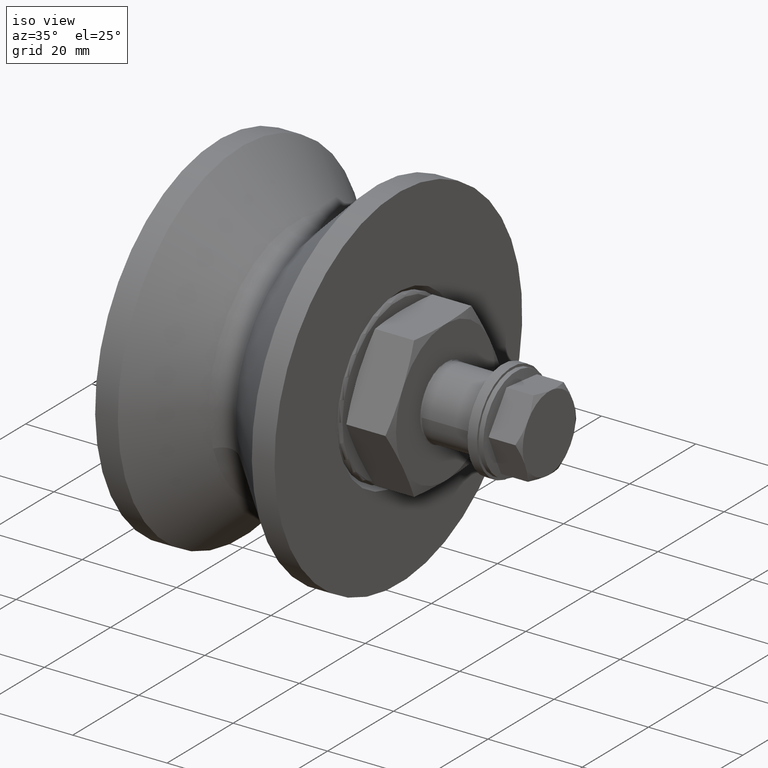
[diagram: clean part render]
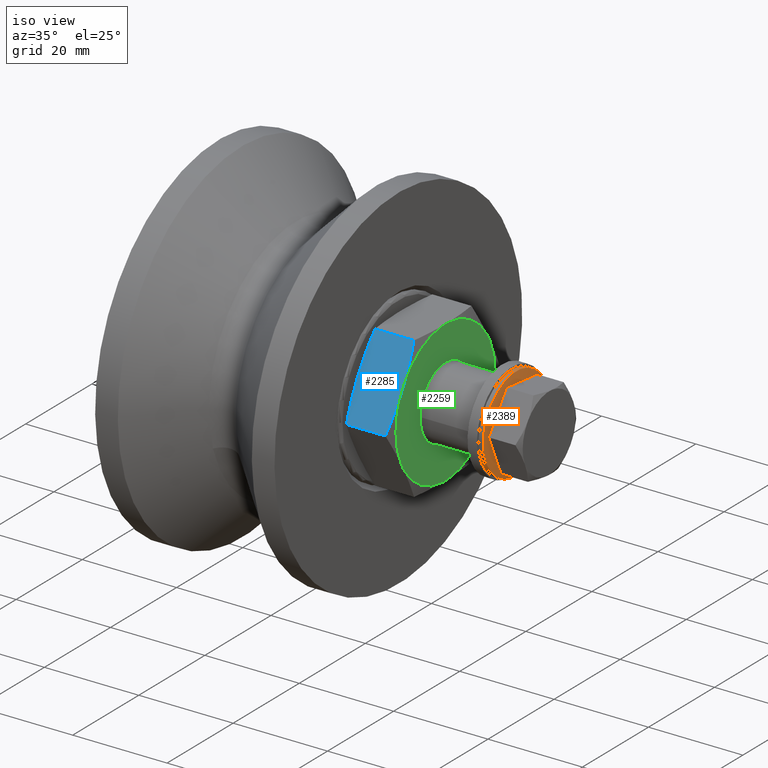
[diagram: same view with three faces highlighted in distinct colors, each labeled with its STEP entity id]
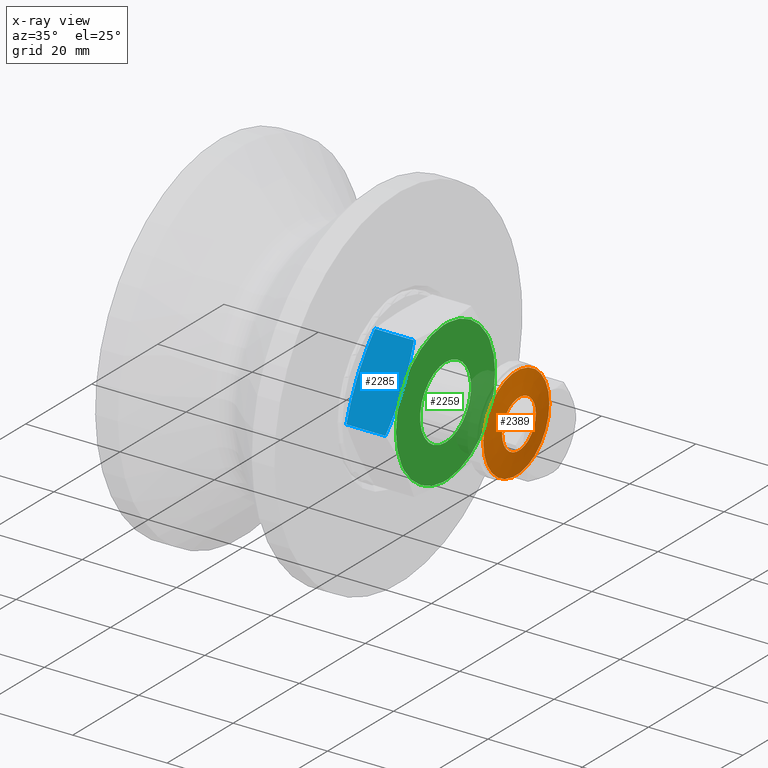
[diagram: x-ray of the same camera — body ghosted, the three highlighted faces saturated]
A machine part, iso view with three faces highlighted in distinct colors.
The next image is the same camera in x-ray (body ghosted, the three faces saturated) — at least one of them is partly hidden behind the body in this view.
Their STEP definitions:

[orange] entity #2389 — the highlighted conical surface has half-angle 83.596 deg.
#230=CONICAL_SURFACE('',#2912,7.55,1.45901928526042);
#395=LINE('',#5178,#483);
#483=VECTOR('',#3604,7.55);
#644=FACE_OUTER_BOUND('',#816,.T.);
#816=EDGE_LOOP('',(#2219,#2220,#2221,#2222));
#971=CIRCLE('',#2913,10.);
#972=CIRCLE('',#2914,5.1);
#1205=VERTEX_POINT('',#5175);
#1206=VERTEX_POINT('',#5177);
#1543=EDGE_CURVE('',#1205,#1205,#971,.T.);
#1544=EDGE_CURVE('',#1205,#1206,#395,.T.);
#1545=EDGE_CURVE('',#1206,#1206,#972,.T.);
#2219=ORIENTED_EDGE('',*,*,#1543,.F.);
#2220=ORIENTED_EDGE('',*,*,#1544,.T.);
#2221=ORIENTED_EDGE('',*,*,#1545,.T.);
#2222=ORIENTED_EDGE('',*,*,#1544,.F.);
#2389=ADVANCED_FACE('',(#644),#230,.T.);
#2912=AXIS2_PLACEMENT_3D('',#5174,#3600,#3601);
#2913=AXIS2_PLACEMENT_3D('',#5176,#3602,#3603);
#2914=AXIS2_PLACEMENT_3D('',#5179,#3605,#3606);
#3600=DIRECTION('center_axis',(0.,-1.,0.));
#3601=DIRECTION('ref_axis',(1.,0.,0.));
#3602=DIRECTION('center_axis',(0.,-1.,0.));
#3603=DIRECTION('ref_axis',(1.,0.,0.));
#3604=DIRECTION('',(0.993759448064252,0.111544427843947,1.21700432719433E-16));
#3605=DIRECTION('center_axis',(0.,-1.,0.));
#3606=DIRECTION('ref_axis',(1.,0.,0.));
#5174=CARTESIAN_POINT('Origin',(0.,1.275,0.));
#5175=CARTESIAN_POINT('',(-10.,1.,-1.22464679914735E-15));
#5176=CARTESIAN_POINT('Origin',(0.,1.,0.));
#5177=CARTESIAN_POINT('',(-5.1,1.55,-6.2456986756515E-16));
#5178=CARTESIAN_POINT('',(-7.55,1.275,-9.24608333356252E-16));
#5179=CARTESIAN_POINT('Origin',(0.,1.55,0.));

[blue] entity #2285 — the highlighted planar face has unit normal (0, -0.866, 0.5).
#151=(
BOUNDED_CURVE()
B_SPLINE_CURVE(2,(#3734,#3735,#3736),.UNSPECIFIED.,.F.,.F.)
B_SPLINE_CURVE_WITH_KNOTS((3,3),(0.477239833382627,1.32556304778078),
 .UNSPECIFIED.)
CURVE()
GEOMETRIC_REPRESENTATION_ITEM()
RATIONAL_B_SPLINE_CURVE((1.03536115959658,1.04910889997977,1.))
REPRESENTATION_ITEM('')
);
#152=(
BOUNDED_CURVE()
B_SPLINE_CURVE(2,(#3740,#3741,#3742),.UNSPECIFIED.,.F.,.F.)
B_SPLINE_CURVE_WITH_KNOTS((3,3),(0.,0.848323214398149),.UNSPECIFIED.)
CURVE()
GEOMETRIC_REPRESENTATION_ITEM()
RATIONAL_B_SPLINE_CURVE((1.,1.04910889997977,1.03536115959658))
REPRESENTATION_ITEM('')
);
#163=(
BOUNDED_CURVE()
B_SPLINE_CURVE(2,(#3794,#3795,#3796),.UNSPECIFIED.,.F.,.F.)
B_SPLINE_CURVE_WITH_KNOTS((3,3),(0.477239833382626,1.32556304778078),
 .UNSPECIFIED.)
CURVE()
GEOMETRIC_REPRESENTATION_ITEM()
RATIONAL_B_SPLINE_CURVE((1.03536115959657,1.04910889997977,1.))
REPRESENTATION_ITEM('')
);
#164=(
BOUNDED_CURVE()
B_SPLINE_CURVE(2,(#3799,#3800,#3801),.UNSPECIFIED.,.F.,.F.)
B_SPLINE_CURVE_WITH_KNOTS((3,3),(0.,0.848323214398158),.UNSPECIFIED.)
CURVE()
GEOMETRIC_REPRESENTATION_ITEM()
RATIONAL_B_SPLINE_CURVE((1.,1.04910889997977,1.03536115959657))
REPRESENTATION_ITEM('')
);
#274=PLANE('',#2681);
#315=LINE('',#3673,#403);
#329=LINE('',#3845,#417);
#333=LINE('',#3853,#421);
#334=LINE('',#3854,#422);
#403=VECTOR('',#2964,10.);
#417=VECTOR('',#3068,10.);
#421=VECTOR('',#3078,10.);
#422=VECTOR('',#3079,10.);
#540=FACE_OUTER_BOUND('',#681,.T.);
#681=EDGE_LOOP('',(#1673,#1674,#1675,#1676,#1677,#1678,#1679,#1680));
#987=VERTEX_POINT('',#3670);
#988=VERTEX_POINT('',#3672);
#1007=VERTEX_POINT('',#3728);
#1008=VERTEX_POINT('',#3732);
#1009=VERTEX_POINT('',#3738);
#1010=VERTEX_POINT('',#3739);
#1022=VERTEX_POINT('',#3790);
#1023=VERTEX_POINT('',#3798);
#1223=EDGE_CURVE('',#987,#988,#315,.T.);
#1250=EDGE_CURVE('',#1007,#1008,#151,.T.);
#1251=EDGE_CURVE('',#1009,#1010,#152,.T.);
#1266=EDGE_CURVE('',#1022,#988,#163,.T.);
#1267=EDGE_CURVE('',#987,#1023,#164,.T.);
#1282=EDGE_CURVE('',#1009,#1008,#329,.T.);
#1287=EDGE_CURVE('',#1010,#1022,#333,.T.);
#1288=EDGE_CURVE('',#1007,#1023,#334,.T.);
#1673=ORIENTED_EDGE('',*,*,#1251,.T.);
#1674=ORIENTED_EDGE('',*,*,#1287,.T.);
#1675=ORIENTED_EDGE('',*,*,#1266,.T.);
#1676=ORIENTED_EDGE('',*,*,#1223,.F.);
#1677=ORIENTED_EDGE('',*,*,#1267,.T.);
#1678=ORIENTED_EDGE('',*,*,#1288,.F.);
#1679=ORIENTED_EDGE('',*,*,#1250,.T.);
#1680=ORIENTED_EDGE('',*,*,#1282,.F.);
#2285=ADVANCED_FACE('',(#540),#274,.T.);
#2681=AXIS2_PLACEMENT_3D('',#3852,#3076,#3077);
#2964=DIRECTION('',(0.,-0.5,-0.866025403784439));
#3068=DIRECTION('',(0.,0.5,0.866025403784439));
#3076=DIRECTION('center_axis',(0.,-0.866025403784439,0.5));
#3077=DIRECTION('ref_axis',(0.,-0.5,-0.866025403784439));
#3078=DIRECTION('',(1.,0.,0.));
#3079=DIRECTION('',(1.,0.,0.));
#3670=CARTESIAN_POINT('',(43.,-12.5980601256936,8.1795197854911));
#3672=CARTESIAN_POINT('',(43.,-13.3827019878395,6.82048021450891));
#3673=CARTESIAN_POINT('',(43.,-9.10656754730549,14.226962325509));
#3728=CARTESIAN_POINT('',(34.1162831425916,-8.66025403784439,15.));
#3732=CARTESIAN_POINT('',(33.5,-12.5980601256936,8.1795197854911));
#3734=CARTESIAN_POINT('Ctrl Pts',(34.1162831425916,-8.66025403784439,15.));
#3735=CARTESIAN_POINT('Ctrl Pts',(33.5511981876489,-10.7691798002832,11.3472334300651));
#3736=CARTESIAN_POINT('Ctrl Pts',(33.5,-12.5980601256936,8.17951978549113));
#3738=CARTESIAN_POINT('',(33.5,-13.3827019878395,6.82048021450891));
#3739=CARTESIAN_POINT('',(34.1162831425916,-17.3205080756888,-1.11022302462516E-15));
#3740=CARTESIAN_POINT('Ctrl Pts',(33.5,-13.3827019878396,6.82048021450889));
#3741=CARTESIAN_POINT('Ctrl Pts',(33.5511981876489,-15.21158231325,3.65276656993492));
#3742=CARTESIAN_POINT('Ctrl Pts',(34.1162831425916,-17.3205080756888,-1.11022302462516E-15));
#3790=CARTESIAN_POINT('',(42.3837168574084,-17.3205080756888,-1.11022302462516E-15));
#3794=CARTESIAN_POINT('Ctrl Pts',(42.3837168574084,-17.3205080756888,-1.11022302462516E-15));
#3795=CARTESIAN_POINT('Ctrl Pts',(42.9488018123511,-15.21158231325,3.65276656993498));
#3796=CARTESIAN_POINT('Ctrl Pts',(43.,-13.3827019878395,6.82048021450895));
#3798=CARTESIAN_POINT('',(42.3837168574084,-8.66025403784439,15.));
#3799=CARTESIAN_POINT('Ctrl Pts',(43.,-12.5980601256937,8.17951978549105));
#3800=CARTESIAN_POINT('Ctrl Pts',(42.9488018123511,-10.7691798002832,11.347233430065));
#3801=CARTESIAN_POINT('Ctrl Pts',(42.3837168574084,-8.66025403784439,15.));
#3845=CARTESIAN_POINT('',(33.5,-8.9190675473055,14.5517218519282));
#3852=CARTESIAN_POINT('Origin',(0.,-8.66025403784439,15.));
#3853=CARTESIAN_POINT('',(0.,-17.3205080756888,-1.11022302462516E-15));
#3854=CARTESIAN_POINT('',(0.,-8.66025403784439,15.));

[green] entity #2259 — the highlighted planar face has unit normal (1, 0, 0).
#232=FACE_BOUND('',#651,.T.);
#268=PLANE('',#2629);
#312=LINE('',#3661,#400);
#313=LINE('',#3665,#401);
#314=LINE('',#3669,#402);
#315=LINE('',#3673,#403);
#316=LINE('',#3677,#404);
#317=LINE('',#3680,#405);
#400=VECTOR('',#2955,10.);
#401=VECTOR('',#2958,10.);
#402=VECTOR('',#2961,10.);
#403=VECTOR('',#2964,10.);
#404=VECTOR('',#2967,10.);
#405=VECTOR('',#2970,10.);
#514=FACE_OUTER_BOUND('',#650,.T.);
#650=EDGE_LOOP('',(#1562,#1563,#1564,#1565,#1566,#1567,#1568,#1569,#1570,
#1571,#1572,#1573));
#651=EDGE_LOOP('',(#1574));
#820=CIRCLE('',#2622,7.7);
#826=CIRCLE('',#2630,15.0205080756888);
#827=CIRCLE('',#2631,15.0205080756888);
#828=CIRCLE('',#2632,15.0205080756888);
#829=CIRCLE('',#2633,15.0205080756888);
#830=CIRCLE('',#2634,15.0205080756888);
#831=CIRCLE('',#2635,15.0205080756888);
#975=VERTEX_POINT('',#3643);
#980=VERTEX_POINT('',#3657);
#981=VERTEX_POINT('',#3658);
#982=VERTEX_POINT('',#3660);
#983=VERTEX_POINT('',#3662);
#984=VERTEX_POINT('',#3664);
#985=VERTEX_POINT('',#3666);
#986=VERTEX_POINT('',#3668);
#987=VERTEX_POINT('',#3670);
#988=VERTEX_POINT('',#3672);
#989=VERTEX_POINT('',#3674);
#990=VERTEX_POINT('',#3676);
#991=VERTEX_POINT('',#3678);
#1209=EDGE_CURVE('',#975,#975,#820,.T.);
#1216=EDGE_CURVE('',#980,#981,#826,.T.);
#1217=EDGE_CURVE('',#981,#982,#312,.T.);
#1218=EDGE_CURVE('',#982,#983,#827,.T.);
#1219=EDGE_CURVE('',#983,#984,#313,.T.);
#1220=EDGE_CURVE('',#984,#985,#828,.T.);
#1221=EDGE_CURVE('',#985,#986,#314,.T.);
#1222=EDGE_CURVE('',#986,#987,#829,.T.);
#1223=EDGE_CURVE('',#987,#988,#315,.T.);
#1224=EDGE_CURVE('',#988,#989,#830,.T.);
#1225=EDGE_CURVE('',#989,#990,#316,.T.);
#1226=EDGE_CURVE('',#990,#991,#831,.T.);
#1227=EDGE_CURVE('',#991,#980,#317,.T.);
#1562=ORIENTED_EDGE('',*,*,#1216,.T.);
#1563=ORIENTED_EDGE('',*,*,#1217,.T.);
#1564=ORIENTED_EDGE('',*,*,#1218,.T.);
#1565=ORIENTED_EDGE('',*,*,#1219,.T.);
#1566=ORIENTED_EDGE('',*,*,#1220,.T.);
#1567=ORIENTED_EDGE('',*,*,#1221,.T.);
#1568=ORIENTED_EDGE('',*,*,#1222,.T.);
#1569=ORIENTED_EDGE('',*,*,#1223,.T.);
#1570=ORIENTED_EDGE('',*,*,#1224,.T.);
#1571=ORIENTED_EDGE('',*,*,#1225,.T.);
#1572=ORIENTED_EDGE('',*,*,#1226,.T.);
#1573=ORIENTED_EDGE('',*,*,#1227,.T.);
#1574=ORIENTED_EDGE('',*,*,#1209,.F.);
#2259=ADVANCED_FACE('',(#514,#232),#268,.T.);
#2622=AXIS2_PLACEMENT_3D('',#3644,#2936,#2937);
#2629=AXIS2_PLACEMENT_3D('',#3656,#2951,#2952);
#2630=AXIS2_PLACEMENT_3D('',#3659,#2953,#2954);
#2631=AXIS2_PLACEMENT_3D('',#3663,#2956,#2957);
#2632=AXIS2_PLACEMENT_3D('',#3667,#2959,#2960);
#2633=AXIS2_PLACEMENT_3D('',#3671,#2962,#2963);
#2634=AXIS2_PLACEMENT_3D('',#3675,#2965,#2966);
#2635=AXIS2_PLACEMENT_3D('',#3679,#2968,#2969);
#2936=DIRECTION('center_axis',(1.,0.,0.));
#2937=DIRECTION('ref_axis',(0.,-1.,1.22464679914735E-16));
#2951=DIRECTION('center_axis',(1.,0.,0.));
#2952=DIRECTION('ref_axis',(0.,0.,-1.));
#2953=DIRECTION('center_axis',(1.,0.,0.));
#2954=DIRECTION('ref_axis',(0.,1.,0.));
#2955=DIRECTION('',(0.,0.5,0.866025403784439));
#2956=DIRECTION('center_axis',(1.,0.,0.));
#2957=DIRECTION('ref_axis',(0.,1.,0.));
#2958=DIRECTION('',(0.,-0.5,0.866025403784438));
#2959=DIRECTION('center_axis',(1.,0.,0.));
#2960=DIRECTION('ref_axis',(0.,1.,0.));
#2961=DIRECTION('',(0.,-1.,-2.56395024851142E-16));
#2962=DIRECTION('center_axis',(1.,0.,0.));
#2963=DIRECTION('ref_axis',(0.,1.,0.));
#2964=DIRECTION('',(0.,-0.5,-0.866025403784439));
#2965=DIRECTION('center_axis',(1.,0.,0.));
#2966=DIRECTION('ref_axis',(0.,1.,0.));
#2967=DIRECTION('',(0.,0.5,-0.866025403784439));
#2968=DIRECTION('center_axis',(1.,0.,0.));
#2969=DIRECTION('ref_axis',(0.,1.,0.));
#2970=DIRECTION('',(0.,1.,-1.28197512425571E-16));
#3643=CARTESIAN_POINT('',(43.,-9.42978035343462E-16,7.7));
#3644=CARTESIAN_POINT('Origin',(43.,0.,0.));
#3656=CARTESIAN_POINT('Origin',(43.,13.75,0.));
#3657=CARTESIAN_POINT('',(43.,0.784641862145886,-15.));
#3658=CARTESIAN_POINT('',(43.,12.5980601256936,-8.1795197854911));
#3659=CARTESIAN_POINT('Origin',(43.,0.,0.));
#3660=CARTESIAN_POINT('',(43.,13.3827019878395,-6.82048021450892));
#3661=CARTESIAN_POINT('',(43.,12.5440675473055,-8.273037674491));
#3662=CARTESIAN_POINT('',(43.,13.3827019878395,6.82048021450892));
#3663=CARTESIAN_POINT('Origin',(43.,0.,0.));
#3664=CARTESIAN_POINT('',(43.,12.5980601256936,8.1795197854911));
#3665=CARTESIAN_POINT('',(43.,16.8741945662277,0.773037674490995));
#3666=CARTESIAN_POINT('',(43.,0.784641862145884,15.));
#3667=CARTESIAN_POINT('Origin',(43.,0.,0.));
#3668=CARTESIAN_POINT('',(43.,-0.784641862145892,15.));
#3669=CARTESIAN_POINT('',(43.,11.2051270189222,15.));
#3670=CARTESIAN_POINT('',(43.,-12.5980601256936,8.1795197854911));
#3671=CARTESIAN_POINT('Origin',(43.,0.,0.));
#3672=CARTESIAN_POINT('',(43.,-13.3827019878395,6.82048021450891));
#3673=CARTESIAN_POINT('',(43.,-9.10656754730549,14.226962325509));
#3674=CARTESIAN_POINT('',(43.,-13.3827019878395,-6.82048021450891));
#3675=CARTESIAN_POINT('Origin',(43.,0.,0.));
#3676=CARTESIAN_POINT('',(43.,-12.5980601256936,-8.1795197854911));
#3677=CARTESIAN_POINT('',(43.,-13.4366945662277,-6.72696232550901));
#3678=CARTESIAN_POINT('',(43.,-0.784641862145889,-15.));
#3679=CARTESIAN_POINT('Origin',(43.,0.,0.));
#3680=CARTESIAN_POINT('',(43.,2.5448729810778,-15.));